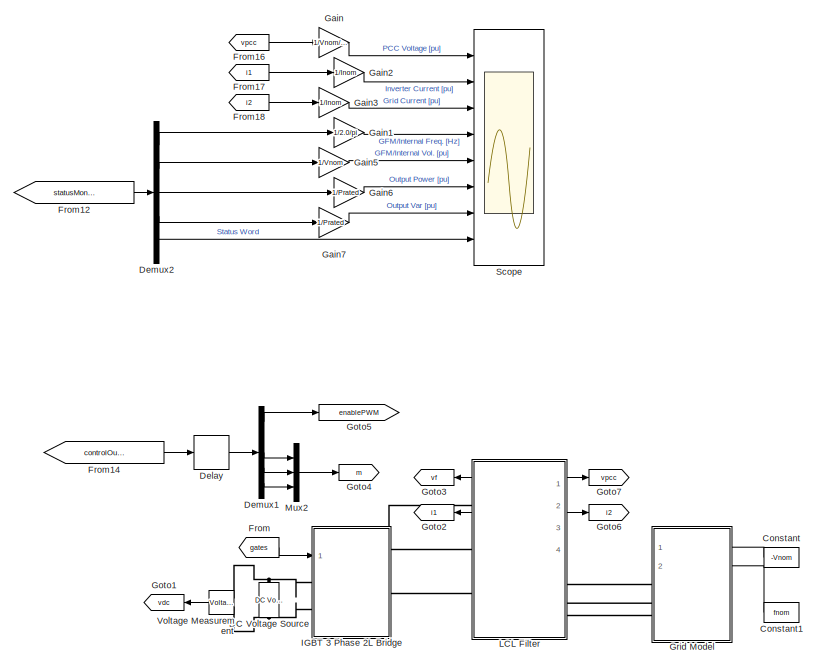
[diagram: root canvas - part 1/2, right side, full height]
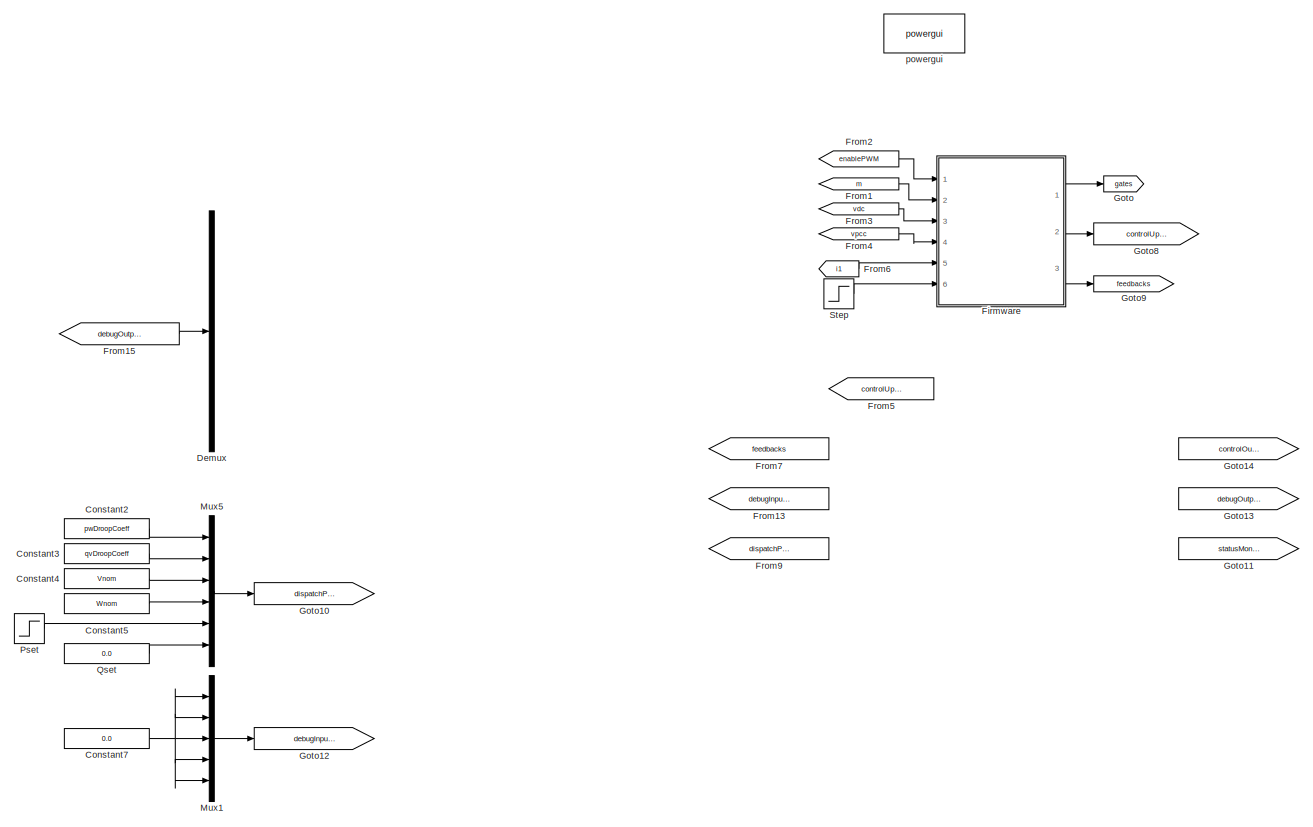
[diagram: root canvas - part 2/2, left side, full height]
MODEL slx_58d80687f201
KIND model
CONFIG AbsTol = auto
CONFIG EnableMultiTasking = off
CONFIG FixedStep = auto
CONFIG InitFcn = % VSC Rating \nVnomrms          = 120.0;                                              % [V]\nVnom               = Vnomrms*sqrt(2);                             % [V]\nfnom                = 60.0;                                                % [Hz]\nWnom              = 2.0*pi*fnom;                                     % [rad/s]\nPrated              = 3.0e3;                                               %...<+1897ch>
CONFIG MaxStep = 1e-3
CONFIG MinStep = auto
CONFIG RelTol = 1e-3
CONFIG SampleTimeConstraint = Unconstrained
CONFIG SolverName = VariableStepAuto
CONFIG StartTime = 0.0
CONFIG StopFcn = clear functions
CONFIG StopTime = 1
BLOCK [Constant] Constant
  NameLocation = top
  SampleTime = -1
  Value = -Vnom
  VectorParams1D = off
BLOCK [Constant] Constant1
  NameLocation = top
  SampleTime = -1
  Value = fnom
  VectorParams1D = off
BLOCK [Constant] Constant2
  Value = pwDroopCoeff
BLOCK [Constant] Constant3
  Value = qvDroopCoeff
BLOCK [Constant] Constant4
  Value = Vnom
BLOCK [Constant] Constant5
  Value = Wnom
BLOCK [Constant] Constant7
  Value = 0.0
BLOCK [Reference] DC Voltage Source  REF=powerlib/Electrical
Sources/DC Voltage Source
  NameLocation = right
  Ports = [0, 0, 0, 0, 0, 1, 1]
  SourceBlock = powerlib/Electrical\nSources/DC Voltage Source
  SourceProductBaseCode = PS
  SourceType = DC Voltage Source
BLOCK [Delay] Delay
  DelayLength = 1
  InputPortMap = u0
  Ports = [1, 1]
BLOCK [Demux] Demux
  Outputs = 10
  Ports = [1, 10]
BLOCK [Demux] Demux1
  Outputs = 5
  Ports = [1, 5]
BLOCK [Demux] Demux2
  Outputs = 5
  Ports = [1, 5]
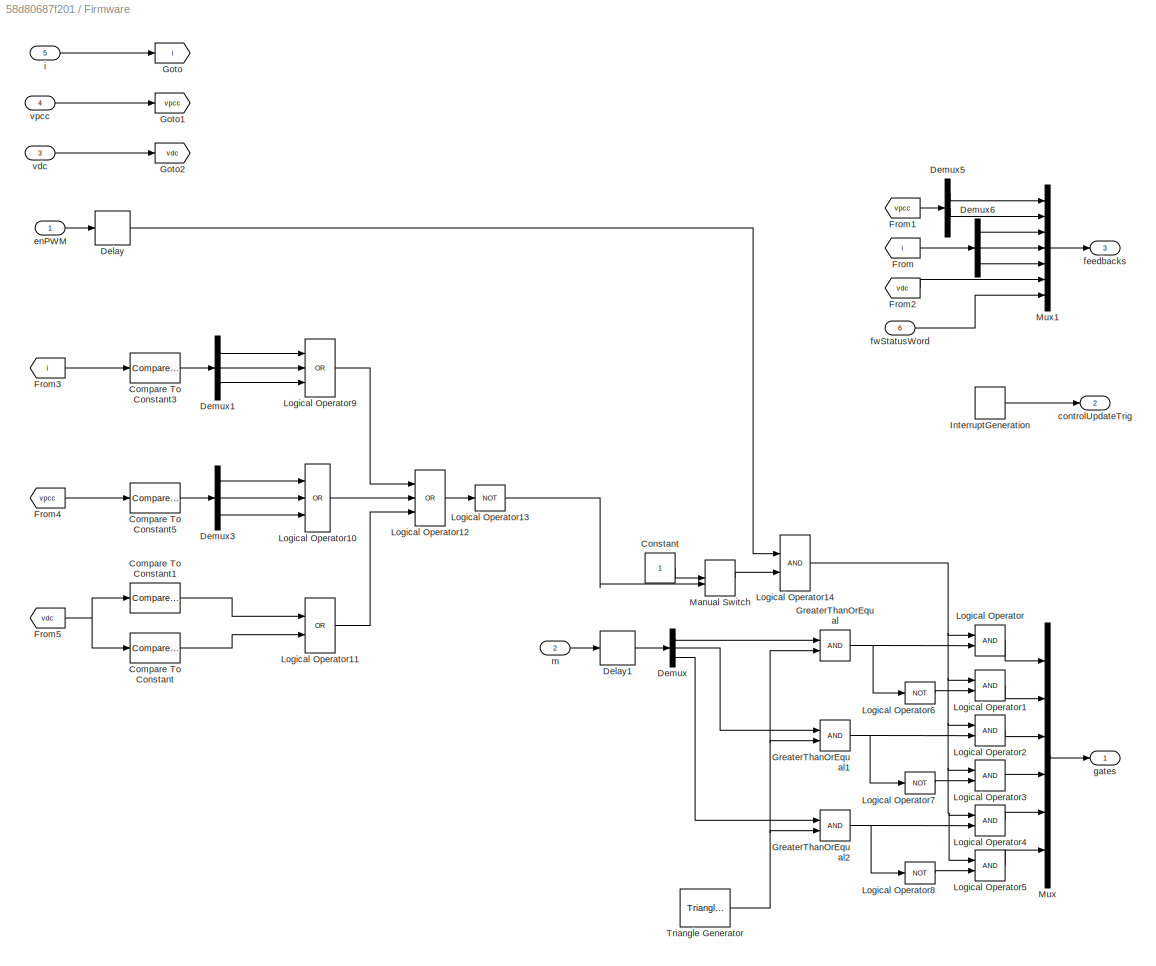
BLOCK [SubSystem] Firmware
  Ports = [6, 3]
  RequestExecContextInheritance = off
BLOCK [Reference] Firmware/Compare To Constant  REF=simulink/Logic and Bit
Operations/Compare
To Constant
  Ports = [1, 1]
  SourceBlock = simulink/Logic and Bit\nOperations/Compare\nTo Constant
  SourceProductBaseCode = SL
  SourceType = Compare To Constant
BLOCK [Reference] Firmware/Compare To Constant1  REF=simulink/Logic and Bit
Operations/Compare
To Constant
  Ports = [1, 1]
  SourceBlock = simulink/Logic and Bit\nOperations/Compare\nTo Constant
  SourceProductBaseCode = SL
  SourceType = Compare To Constant
BLOCK [Reference] Firmware/Compare To Constant3  REF=simulink/Logic and Bit
Operations/Compare
To Constant
  Ports = [1, 1]
  SourceBlock = simulink/Logic and Bit\nOperations/Compare\nTo Constant
  SourceProductBaseCode = SL
  SourceType = Compare To Constant
BLOCK [Reference] Firmware/Compare To Constant5  REF=simulink/Logic and Bit
Operations/Compare
To Constant
  Ports = [1, 1]
  SourceBlock = simulink/Logic and Bit\nOperations/Compare\nTo Constant
  SourceProductBaseCode = SL
  SourceType = Compare To Constant
BLOCK [Constant] Firmware/Constant
BLOCK [Delay] Firmware/Delay
  DelayLength = 1
  InputPortMap = u0
  Ports = [1, 1]
BLOCK [Delay] Firmware/Delay1
  DelayLength = 1
  InputPortMap = u0
  Ports = [1, 1]
BLOCK [Demux] Firmware/Demux
  Outputs = 3
  Ports = [1, 3]
BLOCK [Demux] Firmware/Demux1
  Outputs = 3
  Ports = [1, 3]
BLOCK [Demux] Firmware/Demux3
  Outputs = 3
  Ports = [1, 3]
BLOCK [Demux] Firmware/Demux5
  Outputs = 3
  Ports = [1, 3]
BLOCK [Demux] Firmware/Demux6
  Outputs = 3
  Ports = [1, 3]
BLOCK [From] Firmware/From
  GotoTag = i
BLOCK [From] Firmware/From1
  GotoTag = vpcc
BLOCK [From] Firmware/From2
  GotoTag = vdc
BLOCK [From] Firmware/From3
  GotoTag = i
BLOCK [From] Firmware/From4
  GotoTag = vpcc
BLOCK [From] Firmware/From5
  GotoTag = vdc
BLOCK [Goto] Firmware/Goto
  GotoTag = i
BLOCK [Goto] Firmware/Goto1
  GotoTag = vpcc
BLOCK [Goto] Firmware/Goto2
  GotoTag = vdc
BLOCK [RelationalOperator] Firmware/GreaterThanOrEqual
  InputSameDT = off
  OutDataTypeStr = boolean
  Ports = [2, 1]
  RndMeth = Simplest
BLOCK [RelationalOperator] Firmware/GreaterThanOrEqual1
  InputSameDT = off
  OutDataTypeStr = boolean
  Ports = [2, 1]
  RndMeth = Simplest
BLOCK [RelationalOperator] Firmware/GreaterThanOrEqual2
  InputSameDT = off
  OutDataTypeStr = boolean
  Ports = [2, 1]
  RndMeth = Simplest
BLOCK [DiscretePulseGenerator] Firmware/InterruptGeneration
  Period = 1/fs
  Ports = [0, 1]
  PulseType = Time based
  PulseWidth = 50
BLOCK [Logic] Firmware/Logical Operator
  AllPortsSameDT = off
  OutDataTypeStr = boolean
  Ports = [2, 1]
BLOCK [Logic] Firmware/Logical Operator1
  AllPortsSameDT = off
  OutDataTypeStr = boolean
  Ports = [2, 1]
BLOCK [Logic] Firmware/Logical Operator10
  AllPortsSameDT = off
  Inputs = 3
  Operator = OR
  OutDataTypeStr = boolean
  Ports = [3, 1]
BLOCK [Logic] Firmware/Logical Operator11
  AllPortsSameDT = off
  Operator = OR
  OutDataTypeStr = boolean
  Ports = [2, 1]
BLOCK [Logic] Firmware/Logical Operator12
  AllPortsSameDT = off
  Inputs = 3
  Operator = OR
  OutDataTypeStr = boolean
  Ports = [3, 1]
BLOCK [Logic] Firmware/Logical Operator13
  AllPortsSameDT = off
  Inputs = 3
  Operator = NOT
  OutDataTypeStr = boolean
  Ports = [1, 1]
BLOCK [Logic] Firmware/Logical Operator14
  AllPortsSameDT = off
  OutDataTypeStr = boolean
  Ports = [2, 1]
BLOCK [Logic] Firmware/Logical Operator2
  AllPortsSameDT = off
  OutDataTypeStr = boolean
  Ports = [2, 1]
BLOCK [Logic] Firmware/Logical Operator3
  AllPortsSameDT = off
  OutDataTypeStr = boolean
  Ports = [2, 1]
BLOCK [Logic] Firmware/Logical Operator4
  AllPortsSameDT = off
  OutDataTypeStr = boolean
  Ports = [2, 1]
BLOCK [Logic] Firmware/Logical Operator5
  AllPortsSameDT = off
  OutDataTypeStr = boolean
  Ports = [2, 1]
BLOCK [Logic] Firmware/Logical Operator6
  AllPortsSameDT = off
  Operator = NOT
  OutDataTypeStr = boolean
  Ports = [1, 1]
BLOCK [Logic] Firmware/Logical Operator7
  AllPortsSameDT = off
  Operator = NOT
  OutDataTypeStr = boolean
  Ports = [1, 1]
BLOCK [Logic] Firmware/Logical Operator8
  AllPortsSameDT = off
  Operator = NOT
  OutDataTypeStr = boolean
  Ports = [1, 1]
BLOCK [Logic] Firmware/Logical Operator9
  AllPortsSameDT = off
  Inputs = 3
  Operator = OR
  OutDataTypeStr = boolean
  Ports = [3, 1]
BLOCK [ManualSwitch] Firmware/Manual Switch
BLOCK [Mux] Firmware/Mux
  DisplayOption = bar
  Inputs = 6
  Ports = [6, 1]
BLOCK [Mux] Firmware/Mux1
  DisplayOption = bar
  Inputs = 7
  Ports = [7, 1]
BLOCK [Reference] Firmware/Triangle Generator  REF=powerlib_meascontrol/Pulse & Signal
Generators/Triangle
Generator
  Ports = [0, 1]
  SourceBlock = powerlib_meascontrol/Pulse & Signal\nGenerators/Triangle\nGenerator
  SourceProductBaseCode = PS
  SourceType = Triangle Generator
BLOCK [Outport] Firmware/controlUpdateTrig
  Port = 2
BLOCK [Inport] Firmware/enPWM
BLOCK [Outport] Firmware/feedbacks
  Port = 3
BLOCK [Inport] Firmware/fwStatusWord
  Port = 6
BLOCK [Outport] Firmware/gates
BLOCK [Inport] Firmware/i
  Port = 5
BLOCK [Inport] Firmware/m
  Port = 2
BLOCK [Inport] Firmware/vdc
  Port = 3
BLOCK [Inport] Firmware/vpcc
  Port = 4
BLOCK [From] From
  GotoTag = gates
  TagVisibility = global
BLOCK [From] From1
  GotoTag = m
  TagVisibility = global
BLOCK [From] From12
  GotoTag = statusMonitors
BLOCK [From] From13
  GotoTag = debugInputs
BLOCK [From] From14
  GotoTag = controlOutputs
BLOCK [From] From15
  GotoTag = debugOutputs
BLOCK [From] From16
  GotoTag = vpcc
  NameLocation = top
  TagVisibility = global
BLOCK [From] From17
  GotoTag = i1
  NameLocation = top
  TagVisibility = global
BLOCK [From] From18
  GotoTag = i2
  TagVisibility = global
BLOCK [From] From2
  GotoTag = enablePWM
  TagVisibility = global
BLOCK [From] From3
  GotoTag = vdc
  TagVisibility = global
BLOCK [From] From4
  GotoTag = vpcc
  TagVisibility = global
BLOCK [From] From5
  GotoTag = controlUpdateTrig
  TagVisibility = global
BLOCK [From] From6
  GotoTag = i1
  NameLocation = top
  TagVisibility = global
BLOCK [From] From7
  GotoTag = feedbacks
  TagVisibility = global
BLOCK [From] From9
  GotoTag = dispatchParameters
BLOCK [Gain] Gain
  Gain = 1/Vnom/sqrt(3)
BLOCK [Gain] Gain1
  Gain = 1/2.0/pi
BLOCK [Gain] Gain2
  Gain = 1/Inom
BLOCK [Gain] Gain3
  Gain = 1/Inom
BLOCK [Gain] Gain5
  Gain = 1/Vnom
BLOCK [Gain] Gain6
  Gain = 1/Prated
BLOCK [Gain] Gain7
  Gain = 1/Prated
BLOCK [Goto] Goto
  GotoTag = gates
  TagVisibility = global
BLOCK [Goto] Goto1
  GotoTag = vdc
  NameLocation = top
  TagVisibility = global
BLOCK [Goto] Goto10
  GotoTag = dispatchParameters
BLOCK [Goto] Goto11
  GotoTag = statusMonitors
BLOCK [Goto] Goto12
  GotoTag = debugInputs
BLOCK [Goto] Goto13
  GotoTag = debugOutputs
BLOCK [Goto] Goto14
  GotoTag = controlOutputs
BLOCK [Goto] Goto2
  GotoTag = i1
  NameLocation = top
  TagVisibility = global
BLOCK [Goto] Goto3
  GotoTag = vf
  NameLocation = top
  TagVisibility = global
BLOCK [Goto] Goto4
  GotoTag = m
  TagVisibility = global
BLOCK [Goto] Goto5
  GotoTag = enablePWM
  TagVisibility = global
BLOCK [Goto] Goto6
  GotoTag = i2
  TagVisibility = global
BLOCK [Goto] Goto7
  GotoTag = vpcc
  TagVisibility = global
BLOCK [Goto] Goto8
  GotoTag = controlUpdateTrig
  TagVisibility = global
BLOCK [Goto] Goto9
  GotoTag = feedbacks
  TagVisibility = global
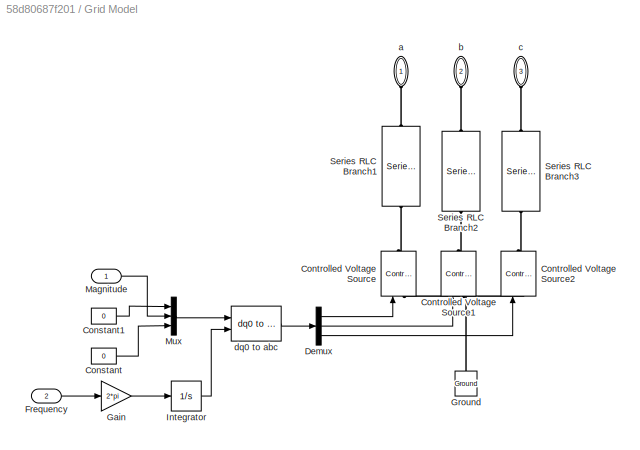
BLOCK [SubSystem] Grid Model
  PortSchema = {"entries":[{"content":{"sides":[{"content":{"connectorIds":["LConn1","LConn2","LConn3"]},"type":"ConnectorPlacement.EquallySpacedRectSide","uuid":"eac9bd49-6506-4418-b391-2d1910dfb123"},{"content":{"connectorIds":["In1","In2"],"side":"RIGHT"},"type":"ConnectorPlacement.EquallySpacedRectSide","uuid":"2cf1b579-036f-4489-9916-029144d18b5e"},{"content":{"connectorIds":[],"side":"TOP"},"type":"Connect...<+554ch>
  Ports = [2, 0, 0, 0, 0, 3]
  RequestExecContextInheritance = off
BLOCK [Constant] Grid Model/Constant
  Value = 0
BLOCK [Constant] Grid Model/Constant1
  Value = 0
BLOCK [Reference] Grid Model/Controlled Voltage Source  REF=powerlib/Electrical
Sources/Controlled Voltage Source
  NameLocation = right
  Ports = [1, 0, 0, 0, 0, 1, 1]
  SourceBlock = powerlib/Electrical\nSources/Controlled Voltage Source
  SourceProductBaseCode = PS
  SourceType = Controlled Voltage Source
BLOCK [Reference] Grid Model/Controlled Voltage Source1  REF=powerlib/Electrical
Sources/Controlled Voltage Source
  NameLocation = right
  Ports = [1, 0, 0, 0, 0, 1, 1]
  SourceBlock = powerlib/Electrical\nSources/Controlled Voltage Source
  SourceProductBaseCode = PS
  SourceType = Controlled Voltage Source
BLOCK [Reference] Grid Model/Controlled Voltage Source2  REF=powerlib/Electrical
Sources/Controlled Voltage Source
  NameLocation = right
  Ports = [1, 0, 0, 0, 0, 1, 1]
  SourceBlock = powerlib/Electrical\nSources/Controlled Voltage Source
  SourceProductBaseCode = PS
  SourceType = Controlled Voltage Source
BLOCK [Demux] Grid Model/Demux
  Outputs = 3
  Ports = [1, 3]
BLOCK [Inport] Grid Model/Frequency
  Port = 2
BLOCK [Gain] Grid Model/Gain
  Gain = 2*pi
BLOCK [Reference] Grid Model/Ground  REF=powerlib/Elements/Ground
  NameLocation = right
  Ports = [0, 0, 0, 0, 0, 1]
  SourceBlock = powerlib/Elements/Ground
  SourceProductBaseCode = PS
  SourceType = Ground
BLOCK [Integrator] Grid Model/Integrator
  InitialCondition = pi/3
  Ports = [1, 1]
  WrapState = on
BLOCK [Inport] Grid Model/Magnitude
BLOCK [Mux] Grid Model/Mux
  DisplayOption = bar
  Inputs = 3
  Ports = [3, 1]
BLOCK [Reference] Grid Model/Series RLC Branch1  REF=powerlib/Elements/Series RLC Branch
  NameLocation = left
  Ports = [0, 0, 0, 0, 0, 1, 1]
  SourceBlock = powerlib/Elements/Series RLC Branch
  SourceProductBaseCode = PS
  SourceType = Series RLC Branch
BLOCK [Reference] Grid Model/Series RLC Branch2  REF=powerlib/Elements/Series RLC Branch
  NameLocation = left
  Ports = [0, 0, 0, 0, 0, 1, 1]
  SourceBlock = powerlib/Elements/Series RLC Branch
  SourceProductBaseCode = PS
  SourceType = Series RLC Branch
BLOCK [Reference] Grid Model/Series RLC Branch3  REF=powerlib/Elements/Series RLC Branch
  NameLocation = left
  Ports = [0, 0, 0, 0, 0, 1, 1]
  SourceBlock = powerlib/Elements/Series RLC Branch
  SourceProductBaseCode = PS
  SourceType = Series RLC Branch
BLOCK [PMIOPort] Grid Model/a
  NameLocation = right
  Side = Left
BLOCK [PMIOPort] Grid Model/b
  NameLocation = right
  Port = 2
  Side = Left
BLOCK [PMIOPort] Grid Model/c
  NameLocation = right
  Port = 3
  Side = Left
BLOCK [Reference] Grid Model/dq0 to abc  REF=powerlib_meascontrol/Transformations/dq0 to abc
  Ports = [2, 1]
  SourceBlock = powerlib_meascontrol/Transformations/dq0 to abc
  SourceProductBaseCode = PS
  SourceType = dq0 to abc Transformation
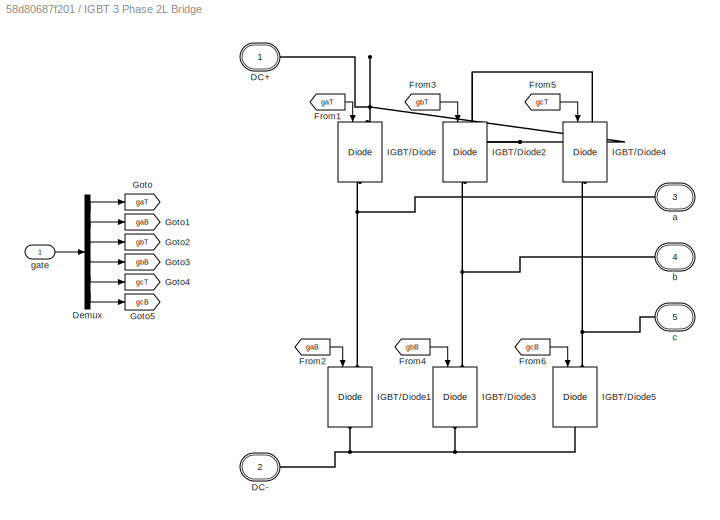
BLOCK [SubSystem] IGBT 3 Phase 2L Bridge
  Ports = [1, 0, 0, 0, 0, 2, 3]
  RequestExecContextInheritance = off
BLOCK [PMIOPort] IGBT 3 Phase 2L Bridge/DC+
  Side = Left
  Tag = PMCPort
BLOCK [PMIOPort] IGBT 3 Phase 2L Bridge/DC-
  Port = 2
  Side = Left
  Tag = PMCPort
BLOCK [Demux] IGBT 3 Phase 2L Bridge/Demux
  Outputs = 6
  Ports = [1, 6]
BLOCK [From] IGBT 3 Phase 2L Bridge/From1
  GotoTag = gaT
BLOCK [From] IGBT 3 Phase 2L Bridge/From2
  GotoTag = gaB
BLOCK [From] IGBT 3 Phase 2L Bridge/From3
  GotoTag = gbT
BLOCK [From] IGBT 3 Phase 2L Bridge/From4
  GotoTag = gbB
BLOCK [From] IGBT 3 Phase 2L Bridge/From5
  GotoTag = gcT
BLOCK [From] IGBT 3 Phase 2L Bridge/From6
  GotoTag = gcB
BLOCK [Goto] IGBT 3 Phase 2L Bridge/Goto
  GotoTag = gaT
BLOCK [Goto] IGBT 3 Phase 2L Bridge/Goto1
  GotoTag = gaB
BLOCK [Goto] IGBT 3 Phase 2L Bridge/Goto2
  GotoTag = gbT
BLOCK [Goto] IGBT 3 Phase 2L Bridge/Goto3
  GotoTag = gbB
BLOCK [Goto] IGBT 3 Phase 2L Bridge/Goto4
  GotoTag = gcT
BLOCK [Goto] IGBT 3 Phase 2L Bridge/Goto5
  GotoTag = gcB
BLOCK [Reference] IGBT 3 Phase 2L Bridge/IGBT//Diode  REF=powerlib/Power
Electronics/IGBT//Diode
  NameLocation = left
  Ports = [1, 0, 0, 0, 0, 1, 1]
  SourceBlock = powerlib/Power\nElectronics/IGBT//Diode
  SourceProductBaseCode = PS
  SourceType = IGBT/Diode
BLOCK [Reference] IGBT 3 Phase 2L Bridge/IGBT//Diode1  REF=powerlib/Power
Electronics/IGBT//Diode
  NameLocation = left
  Ports = [1, 0, 0, 0, 0, 1, 1]
  SourceBlock = powerlib/Power\nElectronics/IGBT//Diode
  SourceProductBaseCode = PS
  SourceType = IGBT/Diode
BLOCK [Reference] IGBT 3 Phase 2L Bridge/IGBT//Diode2  REF=powerlib/Power
Electronics/IGBT//Diode
  NameLocation = left
  Ports = [1, 0, 0, 0, 0, 1, 1]
  SourceBlock = powerlib/Power\nElectronics/IGBT//Diode
  SourceProductBaseCode = PS
  SourceType = IGBT/Diode
BLOCK [Reference] IGBT 3 Phase 2L Bridge/IGBT//Diode3  REF=powerlib/Power
Electronics/IGBT//Diode
  NameLocation = left
  Ports = [1, 0, 0, 0, 0, 1, 1]
  SourceBlock = powerlib/Power\nElectronics/IGBT//Diode
  SourceProductBaseCode = PS
  SourceType = IGBT/Diode
BLOCK [Reference] IGBT 3 Phase 2L Bridge/IGBT//Diode4  REF=powerlib/Power
Electronics/IGBT//Diode
  NameLocation = left
  Ports = [1, 0, 0, 0, 0, 1, 1]
  SourceBlock = powerlib/Power\nElectronics/IGBT//Diode
  SourceProductBaseCode = PS
  SourceType = IGBT/Diode
BLOCK [Reference] IGBT 3 Phase 2L Bridge/IGBT//Diode5  REF=powerlib/Power
Electronics/IGBT//Diode
  NameLocation = left
  Ports = [1, 0, 0, 0, 0, 1, 1]
  SourceBlock = powerlib/Power\nElectronics/IGBT//Diode
  SourceProductBaseCode = PS
  SourceType = IGBT/Diode
BLOCK [PMIOPort] IGBT 3 Phase 2L Bridge/a
  NameLocation = top
  Port = 3
  Side = Right
  Tag = PMCPort
BLOCK [PMIOPort] IGBT 3 Phase 2L Bridge/b
  NameLocation = top
  Port = 4
  Side = Right
  Tag = PMCPort
BLOCK [PMIOPort] IGBT 3 Phase 2L Bridge/c
  NameLocation = top
  Port = 5
  Side = Right
  Tag = PMCPort
BLOCK [Inport] IGBT 3 Phase 2L Bridge/gate
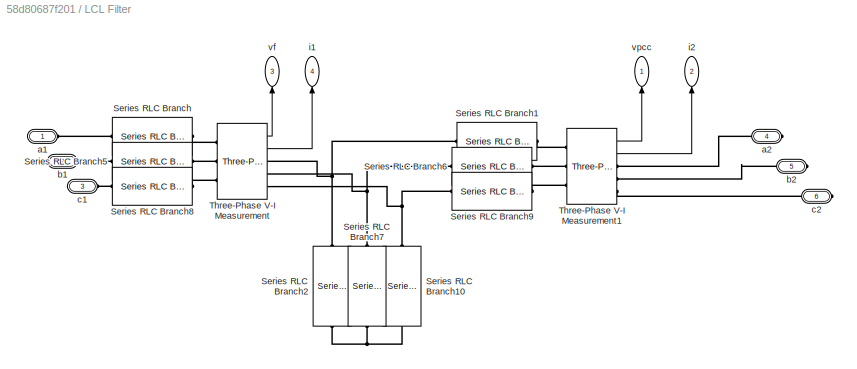
BLOCK [SubSystem] LCL Filter
  PortSchema = {"entries":[{"content":{"sides":[{"content":{"connectorIds":["Out3","Out4","LConn1","LConn2","LConn3"]},"type":"ConnectorPlacement.EquallySpacedRectSide","uuid":"3cdc7e29-4b8c-4f58-9b04-3ab9d7132857"},{"content":{"connectorIds":["Out1","Out2","RConn1","RConn2","RConn3"],"side":"RIGHT"},"type":"ConnectorPlacement.EquallySpacedRectSide","uuid":"8baa2de2-ce0c-48ae-b26c-b1033ca488ed"},{"content":{"con...<+453ch>
  Ports = [0, 4, 0, 0, 0, 3, 3]
  RequestExecContextInheritance = off
BLOCK [Reference] LCL Filter/Series RLC Branch  REF=powerlib/Elements/Series RLC Branch
  Ports = [0, 0, 0, 0, 0, 1, 1]
  SourceBlock = powerlib/Elements/Series RLC Branch
  SourceProductBaseCode = PS
  SourceType = Series RLC Branch
BLOCK [Reference] LCL Filter/Series RLC Branch1  REF=powerlib/Elements/Series RLC Branch
  Ports = [0, 0, 0, 0, 0, 1, 1]
  SourceBlock = powerlib/Elements/Series RLC Branch
  SourceProductBaseCode = PS
  SourceType = Series RLC Branch
BLOCK [Reference] LCL Filter/Series RLC Branch10  REF=powerlib/Elements/Series RLC Branch
  NameLocation = left
  Ports = [0, 0, 0, 0, 0, 1, 1]
  SourceBlock = powerlib/Elements/Series RLC Branch
  SourceProductBaseCode = PS
  SourceType = Series RLC Branch
BLOCK [Reference] LCL Filter/Series RLC Branch2  REF=powerlib/Elements/Series RLC Branch
  NameLocation = left
  Ports = [0, 0, 0, 0, 0, 1, 1]
  SourceBlock = powerlib/Elements/Series RLC Branch
  SourceProductBaseCode = PS
  SourceType = Series RLC Branch
BLOCK [Reference] LCL Filter/Series RLC Branch5  REF=powerlib/Elements/Series RLC Branch
  Ports = [0, 0, 0, 0, 0, 1, 1]
  SourceBlock = powerlib/Elements/Series RLC Branch
  SourceProductBaseCode = PS
  SourceType = Series RLC Branch
BLOCK [Reference] LCL Filter/Series RLC Branch6  REF=powerlib/Elements/Series RLC Branch
  Ports = [0, 0, 0, 0, 0, 1, 1]
  SourceBlock = powerlib/Elements/Series RLC Branch
  SourceProductBaseCode = PS
  SourceType = Series RLC Branch
BLOCK [Reference] LCL Filter/Series RLC Branch7  REF=powerlib/Elements/Series RLC Branch
  NameLocation = left
  Ports = [0, 0, 0, 0, 0, 1, 1]
  SourceBlock = powerlib/Elements/Series RLC Branch
  SourceProductBaseCode = PS
  SourceType = Series RLC Branch
BLOCK [Reference] LCL Filter/Series RLC Branch8  REF=powerlib/Elements/Series RLC Branch
  Ports = [0, 0, 0, 0, 0, 1, 1]
  SourceBlock = powerlib/Elements/Series RLC Branch
  SourceProductBaseCode = PS
  SourceType = Series RLC Branch
BLOCK [Reference] LCL Filter/Series RLC Branch9  REF=powerlib/Elements/Series RLC Branch
  Ports = [0, 0, 0, 0, 0, 1, 1]
  SourceBlock = powerlib/Elements/Series RLC Branch
  SourceProductBaseCode = PS
  SourceType = Series RLC Branch
BLOCK [Reference] LCL Filter/Three-Phase V-I Measurement  REF=powerlib/Measurements/Three-Phase
V-I Measurement
  Ports = [0, 2, 0, 0, 0, 3, 3]
  SourceBlock = powerlib/Measurements/Three-Phase\nV-I Measurement
  SourceProductBaseCode = PS
  SourceType = Three-Phase VI Measurement
BLOCK [Reference] LCL Filter/Three-Phase V-I Measurement1  REF=powerlib/Measurements/Three-Phase
V-I Measurement
  Ports = [0, 2, 0, 0, 0, 3, 3]
  SourceBlock = powerlib/Measurements/Three-Phase\nV-I Measurement
  SourceProductBaseCode = PS
  SourceType = Three-Phase VI Measurement
BLOCK [PMIOPort] LCL Filter/a1
  Side = Left
BLOCK [PMIOPort] LCL Filter/a2
  Port = 4
  Side = Right
BLOCK [PMIOPort] LCL Filter/b1
  Port = 2
  Side = Left
BLOCK [PMIOPort] LCL Filter/b2
  Port = 5
  Side = Right
BLOCK [PMIOPort] LCL Filter/c1
  Port = 3
  Side = Left
BLOCK [PMIOPort] LCL Filter/c2
  Port = 6
  Side = Right
BLOCK [Outport] LCL Filter/i1
  NameLocation = right
  Port = 4
BLOCK [Outport] LCL Filter/i2
  NameLocation = right
  Port = 2
BLOCK [Outport] LCL Filter/vf
  NameLocation = right
  Port = 3
BLOCK [Outport] LCL Filter/vpcc
  NameLocation = right
BLOCK [Mux] Mux1
  DisplayOption = bar
  Inputs = 5
  Ports = [5, 1]
BLOCK [Mux] Mux2
  DisplayOption = bar
  Inputs = 3
  Ports = [3, 1]
BLOCK [Mux] Mux5
  DisplayOption = bar
  Inputs = 6
  Ports = [6, 1]
BLOCK [Step] Pset
  After = Prated
  Before = 0.0
  SampleTime = 0
  Time = 0.5
BLOCK [Constant] Qset
  Value = 0.0
BLOCK [Scope] Scope
  Floating = off
  NumInputPorts = 8
  Ports = [8]
  ScopeSpecificationString = Simulink.scopes.TimeScopeBlockCfg('CurrentConfiguration', extmgr.ConfigurationSet(extmgr.Configuration('Core','General UI',true,'FigureColor',[1 1 1]),extmgr.Configuration('Core','Source UI',true),extmgr.Configuration('Sources','WiredSimulink',true),extmgr.Configuration('Visuals','Time Domain',true,'SerializedDisplays',{struct('MinYLimReal','-1.71672','MaxYLimReal','1.56584','YLabelReal','','MinYL...<+6795ch>
BLOCK [Step] Step
  SampleTime = 0
  Time = 0
BLOCK [Reference] Voltage Measurement  REF=powerlib/Measurements/Voltage Measurement
  Ports = [0, 1, 0, 0, 0, 2]
  SourceBlock = powerlib/Measurements/Voltage Measurement
  SourceProductBaseCode = PS
  SourceType = Voltage Measurement
  UserDataPersistent = on
BLOCK [Reference] powergui  REF=powerlib/powergui
  Ports = []
  Priority = 1
  SourceBlock = powerlib/powergui
  SourceProductBaseCode = PS
  SourceType = PSB option menu block
LINE Constant1:1 -> Grid Model:2
LINE Constant2:1 -> Mux5:1
LINE Constant3:1 -> Mux5:2
LINE Constant4:1 -> Mux5:3
LINE Constant5:1 -> Mux5:4
NET Constant7:1 -> Mux1:1, Mux1:2, Mux1:3, Mux1:4, Mux1:5
LINE Constant:1 -> Grid Model:1
LINE Delay:1 -> Demux1:1
LINE Demux1:1 -> Goto5:1
LINE Demux1:3 -> Mux2:1
LINE Demux1:4 -> Mux2:2
LINE Demux1:5 -> Mux2:3
LINE Demux2:1 -> Gain1:1
LINE Demux2:2 -> Gain5:1
LINE Demux2:3 -> Gain6:1
LINE Demux2:4 -> Gain7:1
LINE Demux2:5 -> Scope:8
LINE Firmware/Compare To Constant1:1 -> Firmware/Logical Operator11:1
LINE Firmware/Compare To Constant3:1 -> Firmware/Demux1:1
LINE Firmware/Compare To Constant5:1 -> Firmware/Demux3:1
LINE Firmware/Compare To Constant:1 -> Firmware/Logical Operator11:2
LINE Firmware/Constant:1 -> Firmware/Manual Switch:1
LINE Firmware/Delay1:1 -> Firmware/Demux:1
LINE Firmware/Delay:1 -> Firmware/Logical Operator14:1
LINE Firmware/Demux1:1 -> Firmware/Logical Operator9:1
LINE Firmware/Demux1:2 -> Firmware/Logical Operator9:2
LINE Firmware/Demux1:3 -> Firmware/Logical Operator9:3
LINE Firmware/Demux3:1 -> Firmware/Logical Operator10:1
LINE Firmware/Demux3:2 -> Firmware/Logical Operator10:2
LINE Firmware/Demux3:3 -> Firmware/Logical Operator10:3
LINE Firmware/Demux5:1 -> Firmware/Mux1:1
LINE Firmware/Demux5:2 -> Firmware/Mux1:2
LINE Firmware/Demux6:1 -> Firmware/Mux1:3
LINE Firmware/Demux6:2 -> Firmware/Mux1:4
LINE Firmware/Demux6:3 -> Firmware/Mux1:5
LINE Firmware/Demux:1 -> Firmware/GreaterThanOrEqual:1
LINE Firmware/Demux:2 -> Firmware/GreaterThanOrEqual1:1
LINE Firmware/Demux:3 -> Firmware/GreaterThanOrEqual2:1
LINE Firmware/From1:1 -> Firmware/Demux5:1
LINE Firmware/From2:1 -> Firmware/Mux1:6
LINE Firmware/From3:1 -> Firmware/Compare To Constant3:1
LINE Firmware/From4:1 -> Firmware/Compare To Constant5:1
NET Firmware/From5:1 -> Firmware/Compare To Constant1:1, Firmware/Compare To Constant:1
LINE Firmware/From:1 -> Firmware/Demux6:1
NET Firmware/GreaterThanOrEqual1:1 -> Firmware/Logical Operator2:2, Firmware/Logical Operator7:1
NET Firmware/GreaterThanOrEqual2:1 -> Firmware/Logical Operator4:2, Firmware/Logical Operator8:1
NET Firmware/GreaterThanOrEqual:1 -> Firmware/Logical Operator6:1, Firmware/Logical Operator:2
LINE Firmware/InterruptGeneration:1 -> Firmware/controlUpdateTrig:1
LINE Firmware/Logical Operator10:1 -> Firmware/Logical Operator12:2
LINE Firmware/Logical Operator11:1 -> Firmware/Logical Operator12:3
LINE Firmware/Logical Operator12:1 -> Firmware/Logical Operator13:1
LINE Firmware/Logical Operator13:1 -> Firmware/Manual Switch:2
NET Firmware/Logical Operator14:1 -> Firmware/Logical Operator1:1, Firmware/Logical Operator2:1, Firmware/Logical Operator3:1, Firmware/Logical Operator4:1, Firmware/Logical Operator5:1, Firmware/Logical Operator:1
LINE Firmware/Logical Operator1:1 -> Firmware/Mux:2
LINE Firmware/Logical Operator2:1 -> Firmware/Mux:3
LINE Firmware/Logical Operator3:1 -> Firmware/Mux:4
LINE Firmware/Logical Operator4:1 -> Firmware/Mux:5
LINE Firmware/Logical Operator5:1 -> Firmware/Mux:6
LINE Firmware/Logical Operator6:1 -> Firmware/Logical Operator1:2
LINE Firmware/Logical Operator7:1 -> Firmware/Logical Operator3:2
LINE Firmware/Logical Operator8:1 -> Firmware/Logical Operator5:2
LINE Firmware/Logical Operator9:1 -> Firmware/Logical Operator12:1
LINE Firmware/Logical Operator:1 -> Firmware/Mux:1
LINE Firmware/Manual Switch:1 -> Firmware/Logical Operator14:2
LINE Firmware/Mux1:1 -> Firmware/feedbacks:1
LINE Firmware/Mux:1 -> Firmware/gates:1
NET Firmware/Triangle Generator:1 -> Firmware/GreaterThanOrEqual1:2, Firmware/GreaterThanOrEqual2:2, Firmware/GreaterThanOrEqual:2
LINE Firmware/enPWM:1 -> Firmware/Delay:1
LINE Firmware/fwStatusWord:1 -> Firmware/Mux1:7
LINE Firmware/i:1 -> Firmware/Goto:1
LINE Firmware/m:1 -> Firmware/Delay1:1
LINE Firmware/vdc:1 -> Firmware/Goto2:1
LINE Firmware/vpcc:1 -> Firmware/Goto1:1
LINE Firmware:1 -> Goto:1
LINE Firmware:2 -> Goto8:1
LINE Firmware:3 -> Goto9:1
LINE From12:1 -> Demux2:1
LINE From14:1 -> Delay:1
LINE From15:1 -> Demux:1
LINE From16:1 -> Gain:1
LINE From17:1 -> Gain2:1
LINE From18:1 -> Gain3:1
LINE From1:1 -> Firmware:2
LINE From2:1 -> Firmware:1
LINE From3:1 -> Firmware:3
LINE From4:1 -> Firmware:4
LINE From6:1 -> Firmware:5
LINE From:1 -> IGBT 3 Phase 2L Bridge:1
LINE Gain1:1 -> Scope:4
LINE Gain2:1 -> Scope:2
LINE Gain3:1 -> Scope:3
LINE Gain5:1 -> Scope:5
LINE Gain6:1 -> Scope:6
LINE Gain7:1 -> Scope:7
LINE Gain:1 -> Scope:1
LINE Grid Model/Constant1:1 -> Grid Model/Mux:1
LINE Grid Model/Constant:1 -> Grid Model/Mux:3
LINE Grid Model/Demux:1 -> Grid Model/Controlled Voltage Source:1
LINE Grid Model/Demux:2 -> Grid Model/Controlled Voltage Source1:1
LINE Grid Model/Demux:3 -> Grid Model/Controlled Voltage Source2:1
LINE Grid Model/Frequency:1 -> Grid Model/Gain:1
LINE Grid Model/Gain:1 -> Grid Model/Integrator:1
LINE Grid Model/Integrator:1 -> Grid Model/dq0 to abc:2
LINE Grid Model/Magnitude:1 -> Grid Model/Mux:2
LINE Grid Model/Mux:1 -> Grid Model/dq0 to abc:1
LINE Grid Model/dq0 to abc:1 -> Grid Model/Demux:1
LINE IGBT 3 Phase 2L Bridge/Demux:1 -> IGBT 3 Phase 2L Bridge/Goto:1
LINE IGBT 3 Phase 2L Bridge/Demux:2 -> IGBT 3 Phase 2L Bridge/Goto1:1
LINE IGBT 3 Phase 2L Bridge/Demux:3 -> IGBT 3 Phase 2L Bridge/Goto2:1
LINE IGBT 3 Phase 2L Bridge/Demux:4 -> IGBT 3 Phase 2L Bridge/Goto3:1
LINE IGBT 3 Phase 2L Bridge/Demux:5 -> IGBT 3 Phase 2L Bridge/Goto4:1
LINE IGBT 3 Phase 2L Bridge/Demux:6 -> IGBT 3 Phase 2L Bridge/Goto5:1
LINE IGBT 3 Phase 2L Bridge/From1:1 -> IGBT 3 Phase 2L Bridge/IGBT//Diode:1
LINE IGBT 3 Phase 2L Bridge/From2:1 -> IGBT 3 Phase 2L Bridge/IGBT//Diode1:1
LINE IGBT 3 Phase 2L Bridge/From3:1 -> IGBT 3 Phase 2L Bridge/IGBT//Diode2:1
LINE IGBT 3 Phase 2L Bridge/From4:1 -> IGBT 3 Phase 2L Bridge/IGBT//Diode3:1
LINE IGBT 3 Phase 2L Bridge/From5:1 -> IGBT 3 Phase 2L Bridge/IGBT//Diode4:1
LINE IGBT 3 Phase 2L Bridge/From6:1 -> IGBT 3 Phase 2L Bridge/IGBT//Diode5:1
LINE IGBT 3 Phase 2L Bridge/gate:1 -> IGBT 3 Phase 2L Bridge/Demux:1
LINE LCL Filter/Three-Phase V-I Measurement1:1 -> LCL Filter/vpcc:1
LINE LCL Filter/Three-Phase V-I Measurement1:2 -> LCL Filter/i2:1
LINE LCL Filter/Three-Phase V-I Measurement:1 -> LCL Filter/vf:1
LINE LCL Filter/Three-Phase V-I Measurement:2 -> LCL Filter/i1:1
LINE LCL Filter:1 -> Goto7:1
LINE LCL Filter:2 -> Goto6:1
LINE LCL Filter:3 -> Goto3:1
LINE LCL Filter:4 -> Goto2:1
LINE Mux1:1 -> Goto12:1
LINE Mux2:1 -> Goto4:1
LINE Mux5:1 -> Goto10:1
LINE Pset:1 -> Mux5:5
LINE Qset:1 -> Mux5:6
LINE Step:1 -> Firmware:6
LINE Voltage Measurement:1 -> Goto1:1
PNET net1: DC Voltage Source:LConn1 -- IGBT 3 Phase 2L Bridge:LConn2 -- Voltage Measurement:LConn2
PNET net2: DC Voltage Source:RConn1 -- IGBT 3 Phase 2L Bridge:LConn1 -- Voltage Measurement:LConn1
PNET net3: Grid Model/Controlled Voltage Source1:LConn1 -- Grid Model/Controlled Voltage Source2:LConn1 -- Grid Model/Controlled Voltage Source:LConn1 -- Grid Model/Ground:LConn1
PLINE Grid Model/Controlled Voltage Source1:RConn1 -- Grid Model/Series RLC Branch2:RConn1
PLINE Grid Model/Controlled Voltage Source2:RConn1 -- Grid Model/Series RLC Branch3:RConn1
PLINE Grid Model/Controlled Voltage Source:RConn1 -- Grid Model/Series RLC Branch1:RConn1
PLINE Grid Model/Series RLC Branch1:LConn1 -- Grid Model/a:RConn1
PLINE Grid Model/Series RLC Branch2:LConn1 -- Grid Model/b:RConn1
PLINE Grid Model/Series RLC Branch3:LConn1 -- Grid Model/c:RConn1
PLINE Grid Model:LConn1 -- LCL Filter:RConn1
PLINE Grid Model:LConn2 -- LCL Filter:RConn2
PLINE Grid Model:LConn3 -- LCL Filter:RConn3
PNET net4: IGBT 3 Phase 2L Bridge/DC+:RConn1 -- IGBT 3 Phase 2L Bridge/IGBT//Diode2:LConn1 -- IGBT 3 Phase 2L Bridge/IGBT//Diode4:LConn1 -- IGBT 3 Phase 2L Bridge/IGBT//Diode:LConn1
PNET net5: IGBT 3 Phase 2L Bridge/DC-:RConn1 -- IGBT 3 Phase 2L Bridge/IGBT//Diode1:RConn1 -- IGBT 3 Phase 2L Bridge/IGBT//Diode3:RConn1 -- IGBT 3 Phase 2L Bridge/IGBT//Diode5:RConn1
PNET net6: IGBT 3 Phase 2L Bridge/IGBT//Diode1:LConn1 -- IGBT 3 Phase 2L Bridge/IGBT//Diode:RConn1 -- IGBT 3 Phase 2L Bridge/a:RConn1
PNET net7: IGBT 3 Phase 2L Bridge/IGBT//Diode2:RConn1 -- IGBT 3 Phase 2L Bridge/IGBT//Diode3:LConn1 -- IGBT 3 Phase 2L Bridge/b:RConn1
PNET net8: IGBT 3 Phase 2L Bridge/IGBT//Diode4:RConn1 -- IGBT 3 Phase 2L Bridge/IGBT//Diode5:LConn1 -- IGBT 3 Phase 2L Bridge/c:RConn1
PLINE IGBT 3 Phase 2L Bridge:RConn1 -- LCL Filter:LConn1
PLINE IGBT 3 Phase 2L Bridge:RConn2 -- LCL Filter:LConn2
PLINE IGBT 3 Phase 2L Bridge:RConn3 -- LCL Filter:LConn3
PNET net9: LCL Filter/Series RLC Branch10:LConn1 -- LCL Filter/Series RLC Branch9:LConn1 -- LCL Filter/Three-Phase V-I Measurement:RConn3
PNET net10: LCL Filter/Series RLC Branch10:RConn1 -- LCL Filter/Series RLC Branch2:RConn1 -- LCL Filter/Series RLC Branch7:RConn1
PNET net11: LCL Filter/Series RLC Branch1:LConn1 -- LCL Filter/Series RLC Branch2:LConn1 -- LCL Filter/Three-Phase V-I Measurement:RConn1
PLINE LCL Filter/Series RLC Branch1:RConn1 -- LCL Filter/Three-Phase V-I Measurement1:LConn1
PLINE LCL Filter/Series RLC Branch5:LConn1 -- LCL Filter/b1:RConn1
PLINE LCL Filter/Series RLC Branch5:RConn1 -- LCL Filter/Three-Phase V-I Measurement:LConn2
PNET net12: LCL Filter/Series RLC Branch6:LConn1 -- LCL Filter/Series RLC Branch7:LConn1 -- LCL Filter/Three-Phase V-I Measurement:RConn2
PLINE LCL Filter/Series RLC Branch6:RConn1 -- LCL Filter/Three-Phase V-I Measurement1:LConn2
PLINE LCL Filter/Series RLC Branch8:LConn1 -- LCL Filter/c1:RConn1
PLINE LCL Filter/Series RLC Branch8:RConn1 -- LCL Filter/Three-Phase V-I Measurement:LConn3
PLINE LCL Filter/Series RLC Branch9:RConn1 -- LCL Filter/Three-Phase V-I Measurement1:LConn3
PLINE LCL Filter/Series RLC Branch:LConn1 -- LCL Filter/a1:RConn1
PLINE LCL Filter/Series RLC Branch:RConn1 -- LCL Filter/Three-Phase V-I Measurement:LConn1
PLINE LCL Filter/Three-Phase V-I Measurement1:RConn1 -- LCL Filter/a2:RConn1
PLINE LCL Filter/Three-Phase V-I Measurement1:RConn2 -- LCL Filter/b2:RConn1
PLINE LCL Filter/Three-Phase V-I Measurement1:RConn3 -- LCL Filter/c2:RConn1
note: NET lines group one-source signal fan-out (src -> all destinations, sorted); 1:1 wires keep LINE; PNET lines group multi-terminal physical nets as a canonical sorted terminal list (undirected conserving connections); 2-terminal nets keep the pairwise PLINE form
